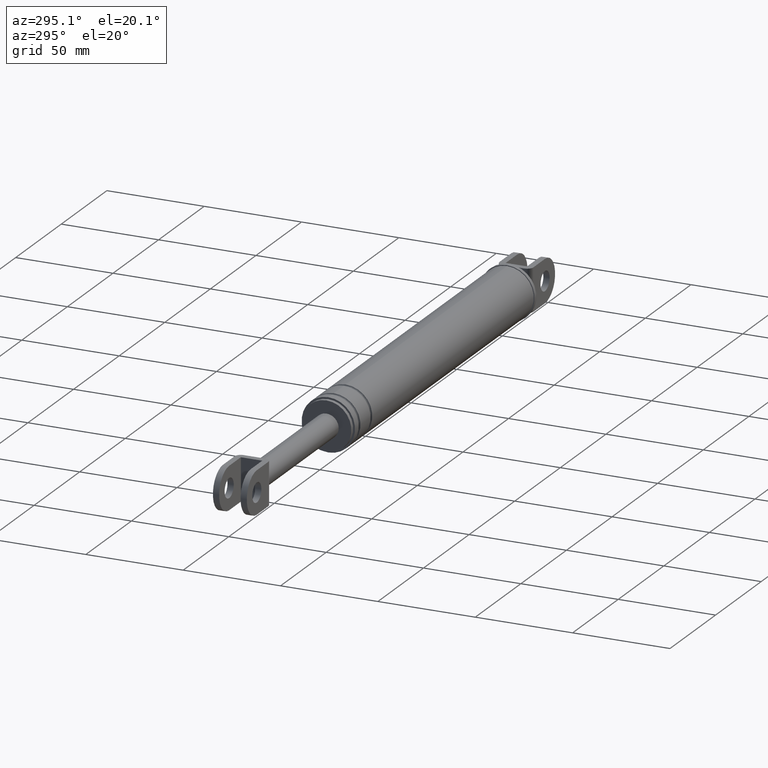
[diagram: clean part render]
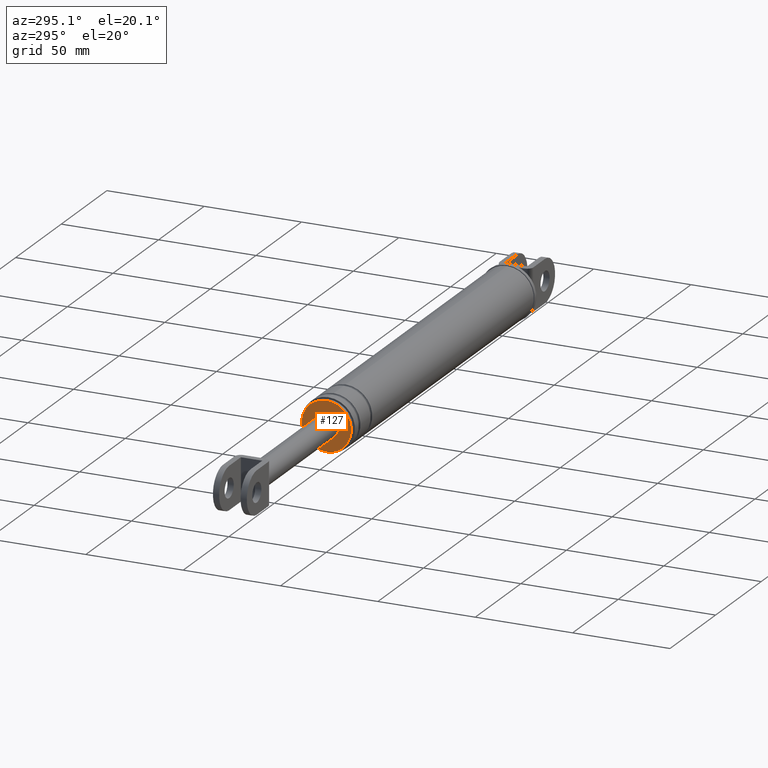
[diagram: same view with one face highlighted and labeled with its STEP entity id]
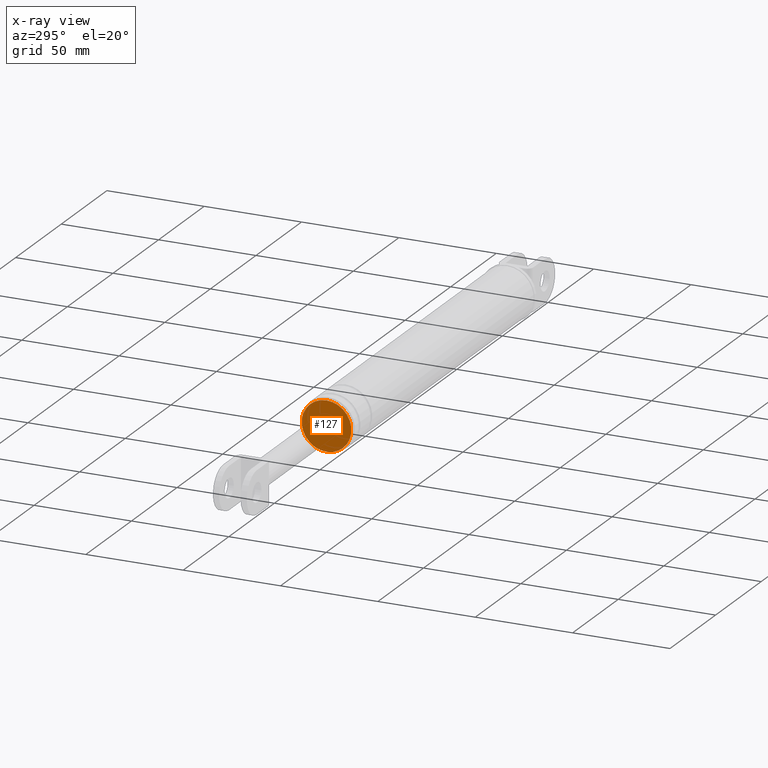
[diagram: x-ray of the same camera — body ghosted, the highlighted face saturated]
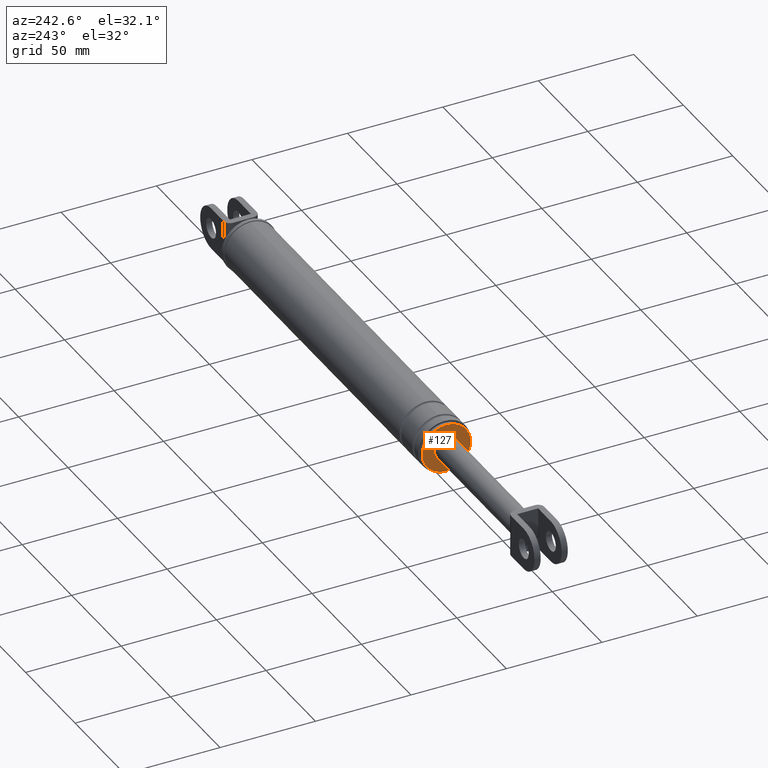
[diagram: same view with one face highlighted and labeled with its STEP entity id]
A machine part, auxiliary view. The second image highlights one B-rep face of the part: STEP entity #127.
The next image is the same camera in x-ray: the body ghosted, the highlighted face saturated — about 0% of this face is hidden behind the body in this view.
A second angle (auxiliary view) of the same face is appended — the face is thin or edge-on in the first view.
In plain terms, the highlighted planar face has unit normal (-1, 0, 0).
Its self-contained STEP definition (entity closure, byte-faithful):
#127=ADVANCED_FACE('',(#330),#329,.T.);
#329=PLANE('',#1315);
#330=FACE_OUTER_BOUND('',#1316,.T.);
#1312=CARTESIAN_POINT('',(1.57171413912E+002,-2.65003773558E+001,2.17139501196E+002));
#1313=DIRECTION('',(-1.00000000000E+000,0.00000000000E+000,0.00000000000E+000));
#1314=DIRECTION('',(0.00000000000E+000,1.00000000000E+000,0.00000000000E+000));
#1315=AXIS2_PLACEMENT_3D('',#1312,#1313,#1314);
#1316=EDGE_LOOP('',(#2004,#2005));
#2004=ORIENTED_EDGE('',*,*,#2295,.T.);
#2005=ORIENTED_EDGE('',*,*,#2296,.T.);
#2295=EDGE_CURVE('',#2760,#2761,#2762,.T.);
#2296=EDGE_CURVE('',#2761,#2760,#2768,.T.);
#2760=VERTEX_POINT('',#3672);
#2761=VERTEX_POINT('',#3673);
#2762=CIRCLE('',#3677,1.27500000000E+001);
#2768=CIRCLE('',#3681,1.27500000000E+001);
#3672=CARTESIAN_POINT('',(1.57171413912E+002,4.68417087116E-015,1.75064501197E+002));
#3673=CARTESIAN_POINT('',(1.57171413912E+002,-1.18423789293E-015,2.00564501197E+002));
#3674=CARTESIAN_POINT('',(1.57171413912E+002,7.80712334456E-016,1.87814501197E+002));
#3675=DIRECTION('',(-1.00000000000E+000,7.88124842006E-016,1.44772997167E-031));
#3676=DIRECTION('',(-0.00000000000E+000,1.83692975340E-016,-1.00000000000E+000));
#3677=AXIS2_PLACEMENT_3D('',#3674,#3675,#3676);
#3678=CARTESIAN_POINT('',(1.57171413912E+002,7.80712334456E-016,1.87814501197E+002));
#3679=DIRECTION('',(-1.00000000000E+000,7.88124842006E-016,1.44772997167E-031));
#3680=DIRECTION('',(-0.00000000000E+000,1.83692975340E-016,-1.00000000000E+000));
#3681=AXIS2_PLACEMENT_3D('',#3678,#3679,#3680);